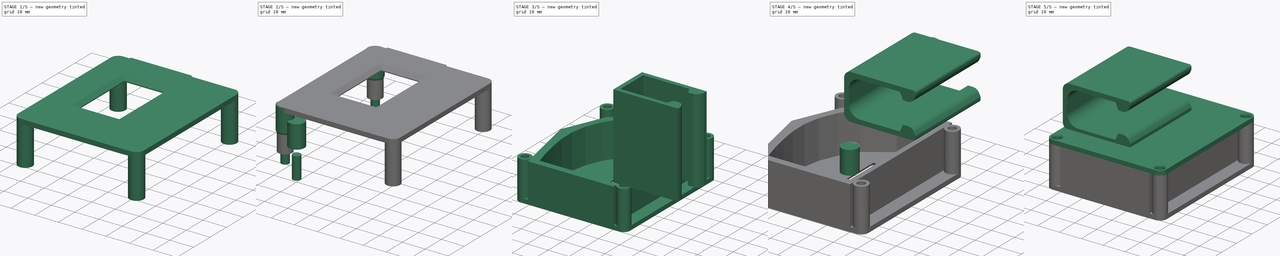
[diagram: build sequence overview — one tinted view per stage of 5, left to right]
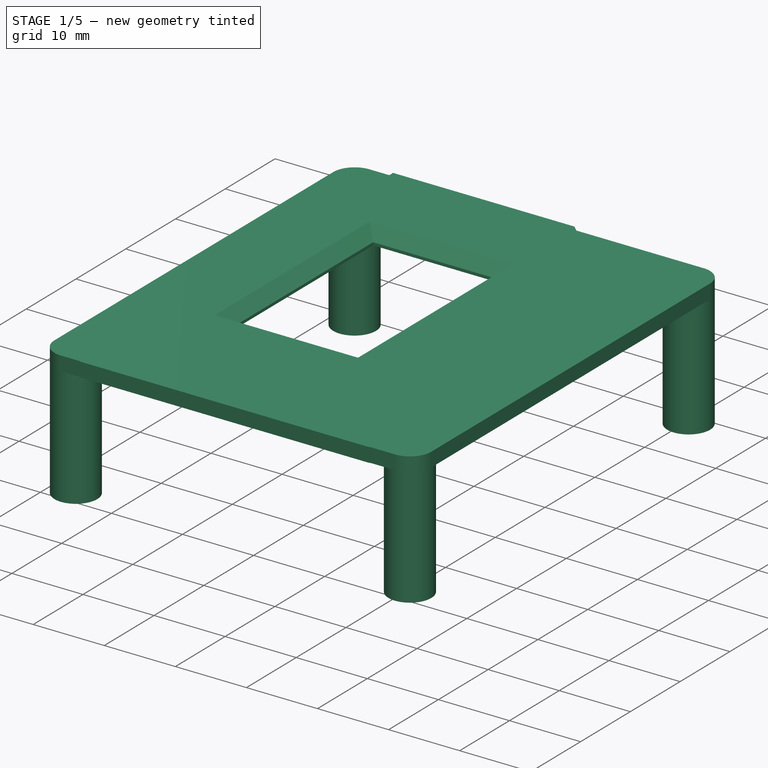
[diagram: stage 1 of 5 — iso view after this stage's code; geometry added in this stage tinted green]
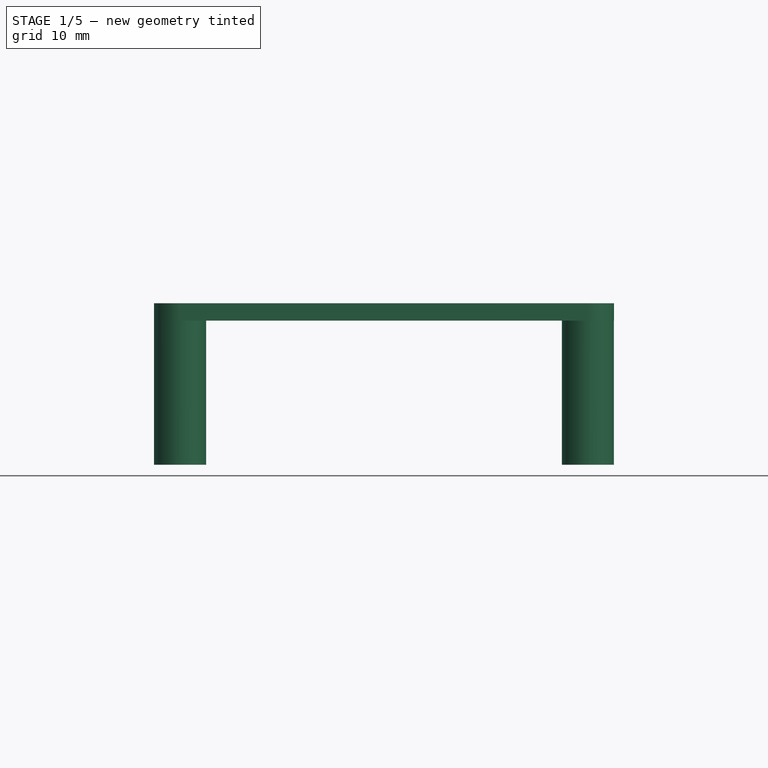
[diagram: stage 1 of 5 — front view after this stage's code; geometry added in this stage tinted green]
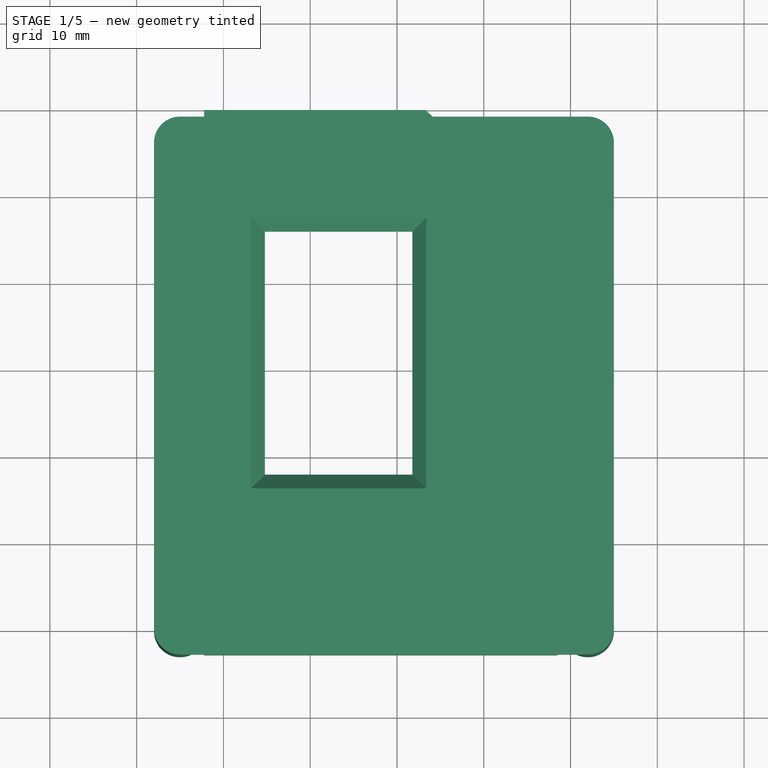
[diagram: stage 1 of 5 — top view after this stage's code; geometry added in this stage tinted green]
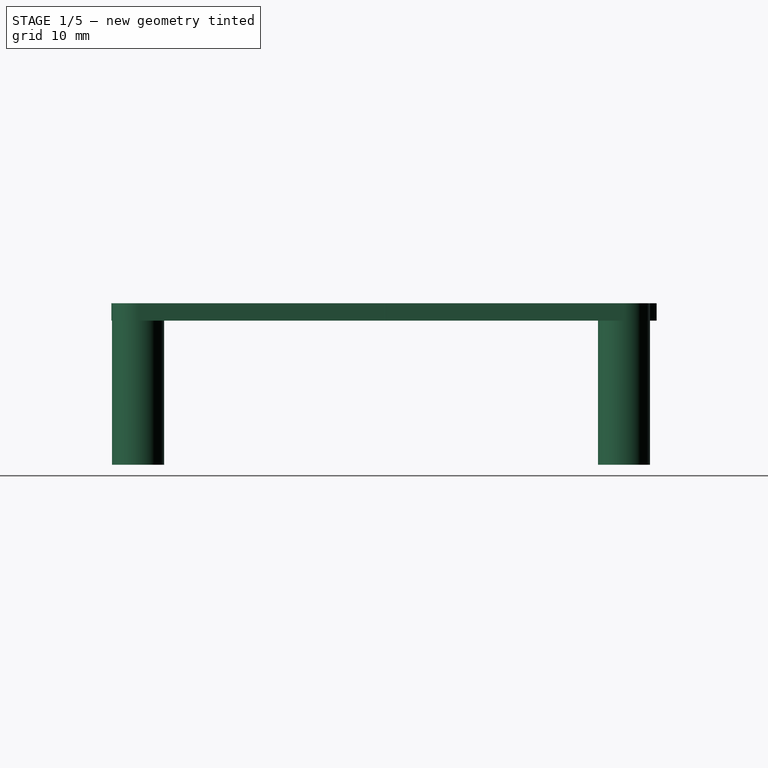
[diagram: stage 1 of 5 — right view after this stage's code; geometry added in this stage tinted green]
FCSTD DOCUMENT  (FreeCAD 0.19R24291 (Git))
Label: assembled
License: All rights reserved
LicenseURL: http://en.wikipedia.org/wiki/All_rights_reserved
objects: Part::Cylinder×20, Part::MultiFuse×20, Part::Cone×8, Part::Fillet×6, Sketcher::SketchObject×4, PartDesign::Pad×4, Part::Cut×3, PartDesign::Body×2, Part::Box×2, Part::Compound×2, Part::Chamfer×1
note: 76 computed .brp shape members not serialized (recipe doc carries the construction recipe); baked Part::Feature solids carry a one-line shape summary decoded from their .brp

FEATURE [Sketcher::SketchObject] Sketch001
  FullyConstrained = false
  MapMode = 5
  Support = -> [XY_Plane001]
  sketch-geometry (10):
    g0: LineSegment StartX=-2.22 StartY=59.76 StartZ=0 EndX=-2.22 EndY=-3.08 EndZ=0
    g1: LineSegment StartX=-2.22 StartY=-3.08 StartZ=0 EndX=38.49 EndY=-3.08 EndZ=0
    g2: LineSegment StartX=38.49 StartY=-3.08 StartZ=0 EndX=45.01 EndY=28.5398 EndZ=0
    g3: LineSegment StartX=45.01 StartY=28.5398 StartZ=0 EndX=36.9087 EndY=47.5089 EndZ=0
    g4: LineSegment StartX=36.9087 StartY=47.5089 StartZ=0 EndX=23.2746 EndY=59.76 EndZ=0
    g5: LineSegment StartX=23.2746 StartY=59.76 StartZ=0 EndX=-2.22 EndY=59.76 EndZ=0
    g6: LineSegment StartX=4.78 StartY=45.76 StartZ=0 EndX=21.78 EndY=45.76 EndZ=0
    g7: LineSegment StartX=21.78 StartY=45.76 StartZ=0 EndX=21.78 EndY=17.76 EndZ=0
    g8: LineSegment StartX=21.78 StartY=17.76 StartZ=0 EndX=4.78 EndY=17.76 EndZ=0
    g9: LineSegment StartX=4.78 StartY=17.76 StartZ=0 EndX=4.78 EndY=45.76 EndZ=0
  constraints (25):
    c: Vertical(g0)
    c: Coincident(g0,g1)
    c: Horizontal(g1)
    c: Coincident(g1,g2)
    c: Coincident(g2,g3)
    c: Coincident(g3,g4)
    c: Coincident(g4,g5)
    c: Coincident(g5,g0)
    c: Horizontal(g5)
    c: DistanceY(g0,g-1) = 3.08
    c: DistanceY(g-1,g0) = 59.76
    c: DistanceX(g0,g-1) = 2.22
    c: DistanceX(g-1,g1) = 38.49
    c: Coincident(g6,g7)
    c: Coincident(g7,g8)
    c: Coincident(g8,g9)
    c: Coincident(g9,g6)
    c: Horizontal(g6)
    c: Horizontal(g8)
    c: Vertical(g7)
    c: Vertical(g9)
    c: DistanceX(g0,g6) = 7
    c: DistanceX(g0,g6) = 24
    c: DistanceY(g6,g0) = 14
    c: DistanceY(g8,g0) = 42
FEATURE [PartDesign::Pad] Pad001
  Direction = (1,1,1)
  Length = 2
  Length2 = 100
  Profile = -> Sketch001
  Type = 0
FEATURE [Sketcher::SketchObject] Sketch002
  FullyConstrained = false
  MapMode = 5
  Support = -> [XY_Plane002]
  sketch-geometry (6):
    g0: LineSegment StartX=-2.21516 StartY=59.7598 StartZ=0 EndX=-2.21516 EndY=-3.07541 EndZ=0
    g1: LineSegment StartX=-2.21516 StartY=-3.07541 StartZ=0 EndX=38.4894 EndY=-3.07541 EndZ=0
    g2: LineSegment StartX=38.4894 StartY=-3.07541 StartZ=0 EndX=45.01 EndY=28.5398 EndZ=0
    g3: LineSegment StartX=45.01 StartY=28.5398 StartZ=0 EndX=36.9087 EndY=47.5089 EndZ=0
    g4: LineSegment StartX=36.9087 StartY=47.5089 StartZ=0 EndX=23.2746 EndY=59.7598 EndZ=0
    g5: LineSegment StartX=23.2746 StartY=59.7598 StartZ=0 EndX=-2.21516 EndY=59.7598 EndZ=0
  constraints (9):
    c: Vertical(g0)
    c: Coincident(g0,g1)
    c: Horizontal(g1)
    c: Coincident(g1,g2)
    c: Coincident(g2,g3)
    c: Coincident(g3,g4)
    c: Coincident(g4,g5)
    c: Coincident(g5,g0)
    c: Horizontal(g5)
FEATURE [PartDesign::Pad] Pad002
  Direction = (1,1,1)
  Length = 2
  Length2 = 100
  Profile = -> Sketch002
  Type = 0
FEATURE [Part::Compound] Compound
  Links = -> [Pad002]
  Placement = pos=(0,0,20) rot=(0,0,1;0rad)
FEATURE [Part::Box] Box001  label="top-plate001"
  AttacherType = Attacher::AttachEngine3D
  Height = 2
  Length = 53
  Placement = pos=(-8,-3,20) rot=(0,0,1;0rad)
  Width = 62
FEATURE [Part::Cut] Cut  label="bottom-plate-extension"
  Base = -> Box001
  Placement = pos=(0,0,-22) rot=(0,0,1;0rad)
  Tool = -> Compound
FEATURE [Part::Cylinder] Cylinder  label="connection-thread"
  Angle = 360
  AttacherType = Attacher::AttachEngine3D
  Height = 16.6
  Placement = pos=(-5,0,0) rot=(0,0,1;0rad)
  Radius = 3
FEATURE [Part::Cylinder] Cylinder009  label="connection-thread001"
  Angle = 360
  AttacherType = Attacher::AttachEngine3D
  Height = 16.6
  Placement = pos=(42,0,0) rot=(0,0,1;0rad)
  Radius = 3
FEATURE [Part::Cylinder] Cylinder010  label="connection-thread002"
  Angle = 360
  AttacherType = Attacher::AttachEngine3D
  Height = 16.6
  Placement = pos=(-5,0,0) rot=(0,0,1;0rad)
  Radius = 3
FEATURE [Part::Cylinder] Cylinder011  label="connection-thread003"
  Angle = 360
  AttacherType = Attacher::AttachEngine3D
  Height = 16.6
  Placement = pos=(42,0,0) rot=(0,0,1;0rad)
  Radius = 3
FEATURE [Part::MultiFuse] Fusion008  label="connection-threads-top"
  Placement = pos=(0,56,0) rot=(0,0,1;0rad)
  Shapes = -> [Cylinder011,Cylinder010]
FEATURE [Part::Fillet] Fillet
  Base = -> Cut
  Edges = 4 edges r=3: [Edge1,Edge3,Edge14,Edge27]
FEATURE [Part::MultiFuse] Fusion010  label="button-plate"
  Placement = pos=(0,0,18.6) rot=(0,0,1;0rad)
  Shapes = -> [Body001,Fillet]
FEATURE [Part::Chamfer] Chamfer  label="chamfered-bottom-plate"
  Base = -> Fusion010
  Edges = 4 edges r=1.6: [Edge44,Edge45,Edge46,Edge47]
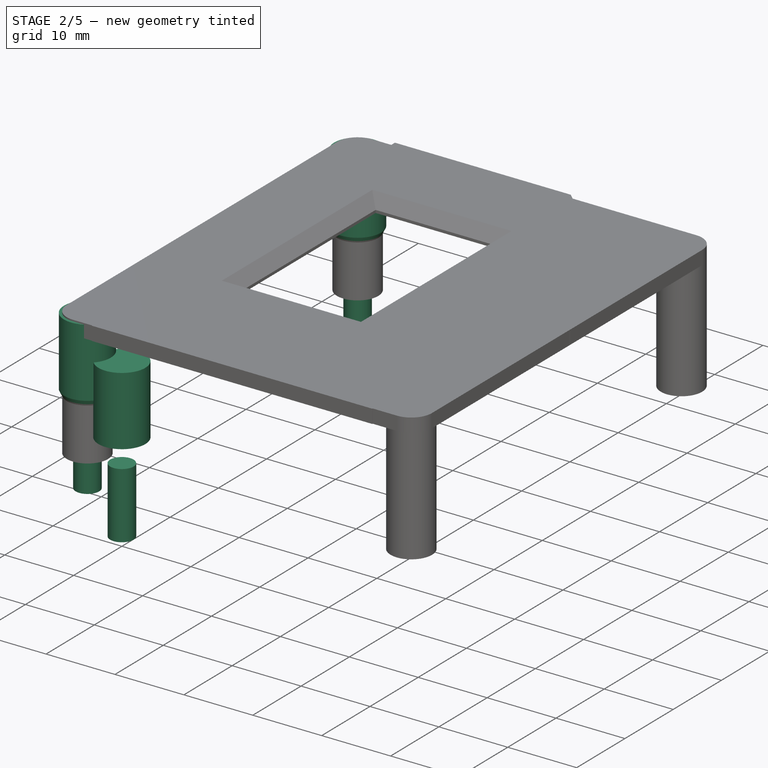
[diagram: stage 2 of 5 — iso view after this stage's code; geometry added in this stage tinted green]
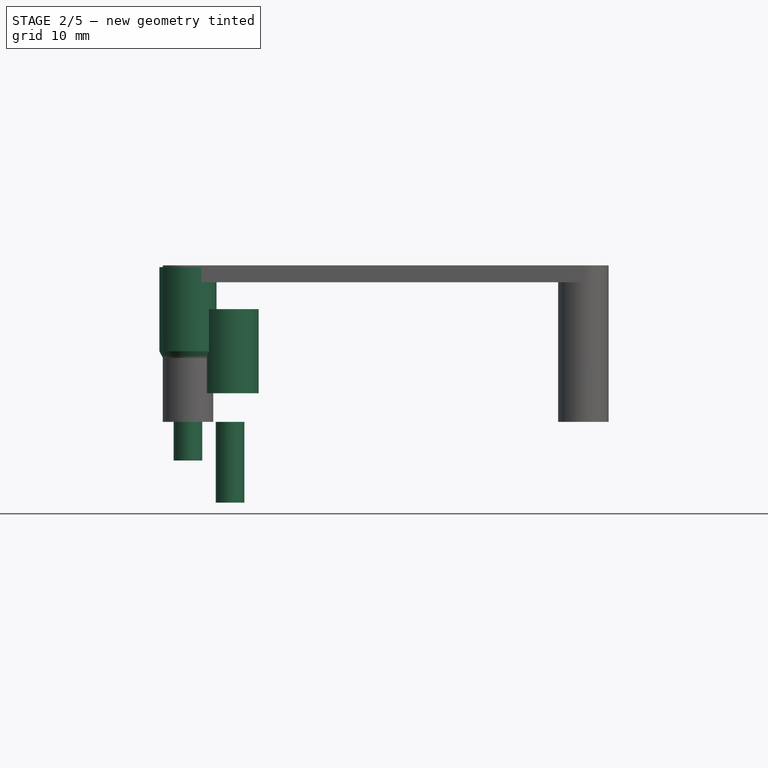
[diagram: stage 2 of 5 — front view after this stage's code; geometry added in this stage tinted green]
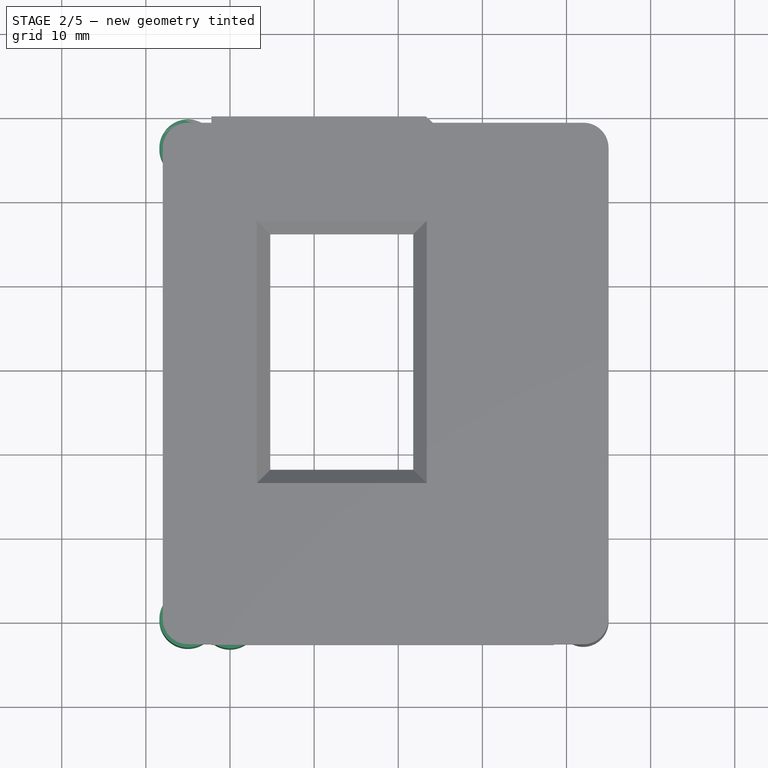
[diagram: stage 2 of 5 — top view after this stage's code; geometry added in this stage tinted green]
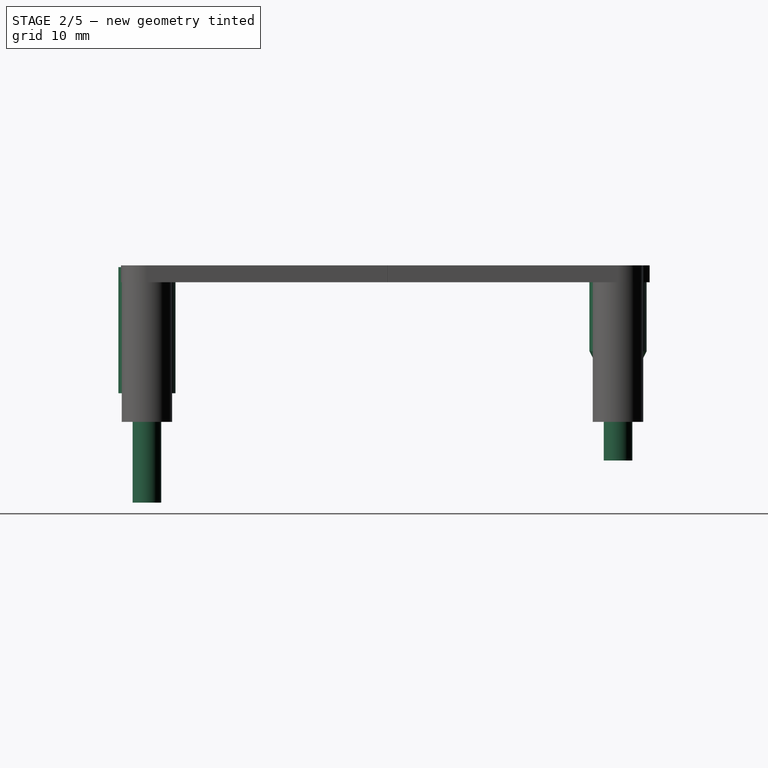
[diagram: stage 2 of 5 — right view after this stage's code; geometry added in this stage tinted green]
FEATURE [Part::Cylinder] Cylinder003  label="grab-screw-head-extension001"
  Angle = 360
  AttacherType = Attacher::AttachEngine3D
  Height = 10
  Placement = pos=(0,0,3.4) rot=(0,0,1;0rad)
  Radius = 3.4
FEATURE [Part::Cylinder] Cylinder004  label="grab-screw-thread001"
  Angle = 360
  AttacherType = Attacher::AttachEngine3D
  Height = 9.6
  Placement = pos=(0,0,-9.6) rot=(0,0,1;0rad)
  Radius = 1.7
FEATURE [Part::Cone] Cone003  label="grab-screw-head002"
  Angle = 360
  AttacherType = Attacher::AttachEngine3D
  Height = 3.4
  Radius1 = 1.7
  Radius2 = 3.4
FEATURE [Part::Cylinder] Cylinder005  label="grab-screw-head-extension002"
  Angle = 360
  AttacherType = Attacher::AttachEngine3D
  Height = 10
  Placement = pos=(0,0,3.4) rot=(0,0,1;0rad)
  Radius = 3.4
FEATURE [Part::Cylinder] Cylinder006  label="grab-screw-thread002"
  Angle = 360
  AttacherType = Attacher::AttachEngine3D
  Height = 9.6
  Placement = pos=(0,0,-9.6) rot=(0,0,1;0rad)
  Radius = 1.7
FEATURE [Part::Cone] Cone004  label="grab-screw-head003"
  Angle = 360
  AttacherType = Attacher::AttachEngine3D
  Height = 3.4
  Radius1 = 1.7
  Radius2 = 3.4
FEATURE [Part::Cylinder] Cylinder007  label="grab-screw-thread003"
  Angle = 360
  AttacherType = Attacher::AttachEngine3D
  Height = 9.6
  Placement = pos=(0,0,-9.6) rot=(0,0,1;0rad)
  Radius = 1.7
FEATURE [Part::MultiFuse] Fusion005  label="grab-screw003"
  Placement = pos=(42,0,5) rot=(0,0,1;0rad)
  Shapes = -> [Cylinder007,Cone003,Cylinder005]
FEATURE [Part::Cylinder] Cylinder008  label="grab-screw-head-extension003"
  Angle = 360
  AttacherType = Attacher::AttachEngine3D
  Height = 10
  Placement = pos=(0,0,3.4) rot=(0,0,1;0rad)
  Radius = 3.4
FEATURE [Part::MultiFuse] Fusion004  label="grab-screw002"
  Placement = pos=(42,56,5) rot=(0,0,1;0rad)
  Shapes = -> [Cylinder006,Cone004,Cylinder008]
FEATURE [Part::MultiFuse] Fusion003  label="left-screws"
  Placement = pos=(-47,0,0) rot=(0,0,1;0rad)
  Shapes = -> [Fusion005,Fusion004]
FEATURE [Part::MultiFuse] Fusion007  label="connection-threads-bottom"
  Shapes = -> [Cylinder009,Cylinder]
FEATURE [Part::MultiFuse] Fusion009  label="screw-sockets"
  Shapes = -> [Fusion008,Fusion007]
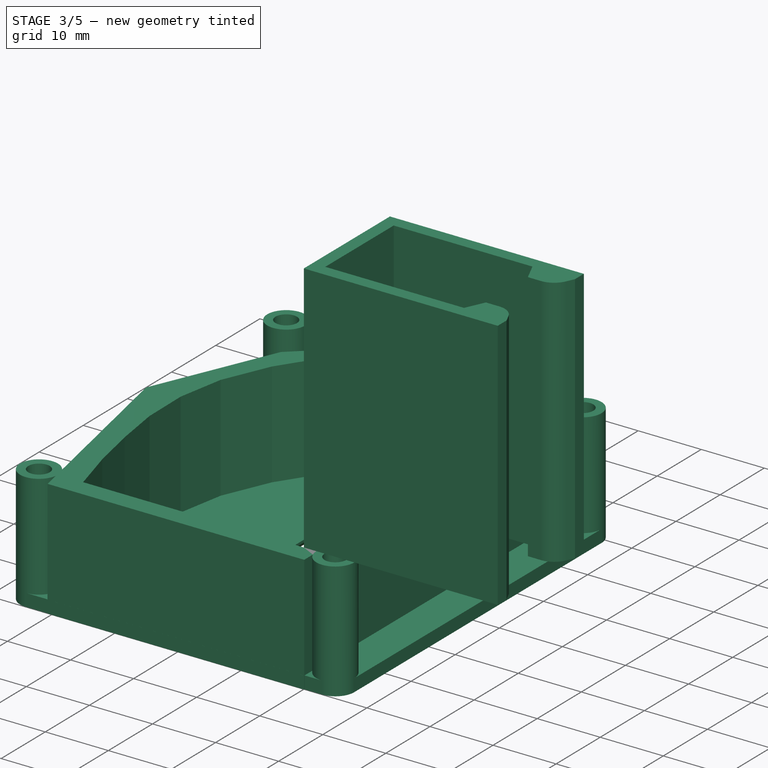
[diagram: stage 3 of 5 — iso view after this stage's code; geometry added in this stage tinted green]
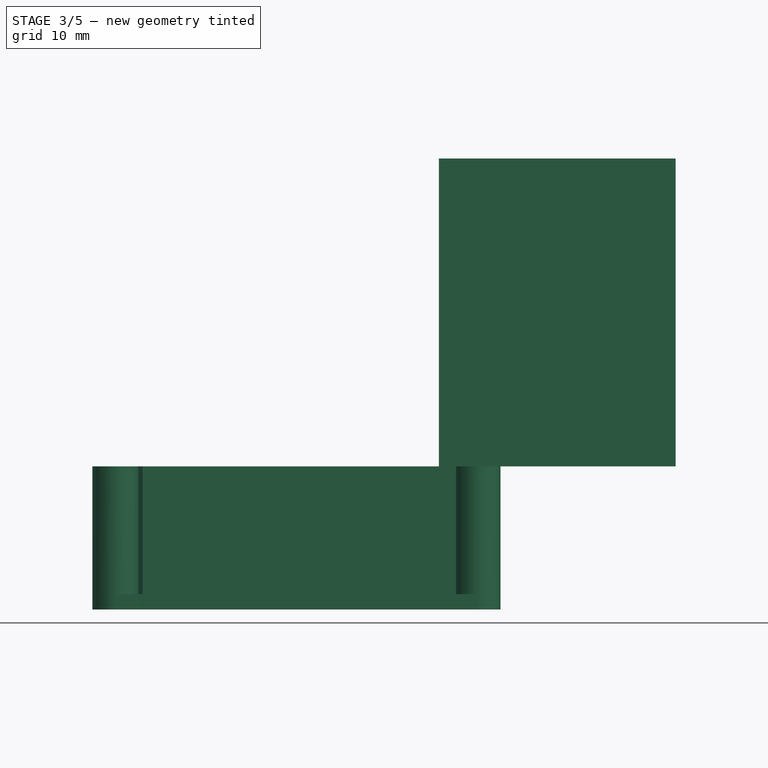
[diagram: stage 3 of 5 — front view after this stage's code; geometry added in this stage tinted green]
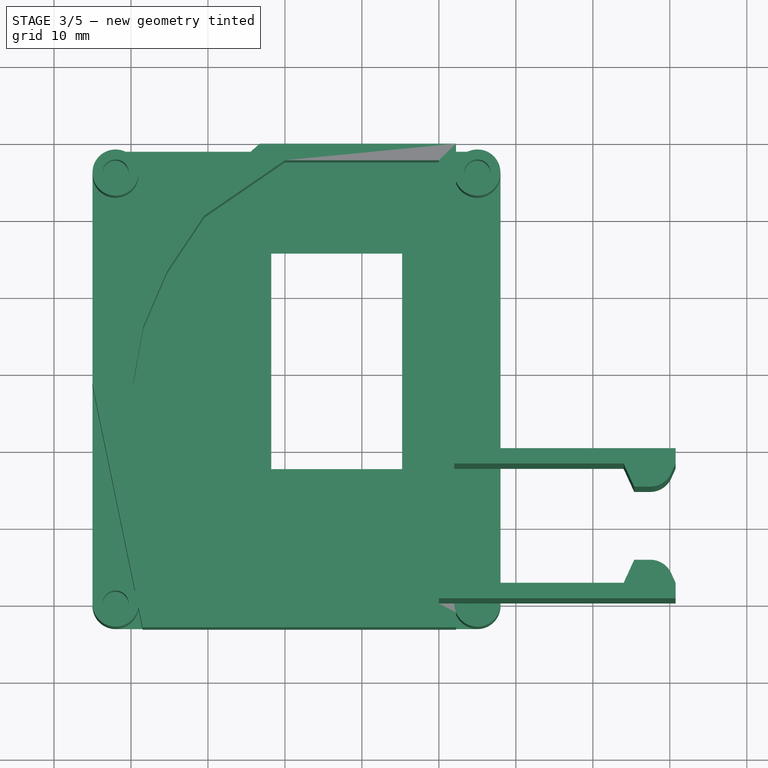
[diagram: stage 3 of 5 — top view after this stage's code; geometry added in this stage tinted green]
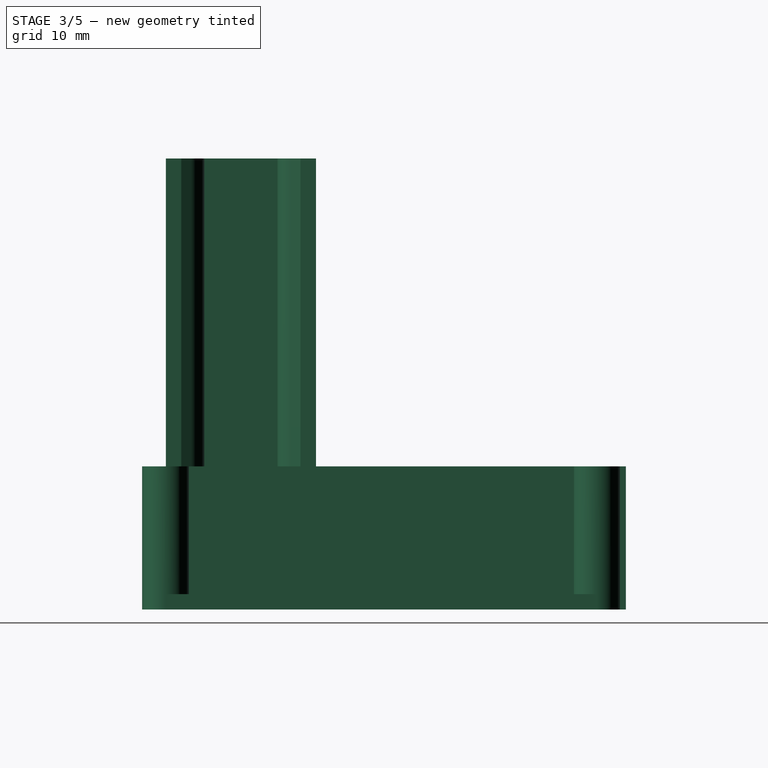
[diagram: stage 3 of 5 — right view after this stage's code; geometry added in this stage tinted green]
FEATURE [PartDesign::Body] Body001  label="bottom-button"
  Group = -> [Sketch001,Pad001]
  Origin = -> Origin001
  Placement = pos=(0,0,-2) rot=(0,0,1;0rad)
  Tip = -> Pad001
FEATURE [Sketcher::SketchObject] Sketch
  FullyConstrained = false
  MapMode = 5
  Support = -> [XY_Plane]
  sketch-geometry (17):
    g0: LineSegment StartX=0 StartY=0 StartZ=0 EndX=35 EndY=0 EndZ=0
    g1: LineSegment StartX=35 StartY=0 StartZ=0 EndX=37 EndY=7.2 EndZ=0
    g2: LineSegment StartX=37 StartY=7.2 StartZ=0 EndX=38.5 EndY=14.4 EndZ=0
    g3: LineSegment StartX=38.5 StartY=14.4 StartZ=0 EndX=39.6 EndY=21.6 EndZ=0
    g4: LineSegment StartX=39.6 StartY=21.6 StartZ=0 EndX=39.7 EndY=28.8 EndZ=0
    g5: LineSegment StartX=39.7 StartY=28.8 StartZ=0 EndX=38.4 EndY=36 EndZ=0
    g6: LineSegment StartX=38.4 StartY=36 StartZ=0 EndX=35.3 EndY=43.2 EndZ=0
    g7: LineSegment StartX=35.3 StartY=43.2 StartZ=0 EndX=30.5 EndY=50.4 EndZ=0
    g8: LineSegment StartX=30.5 StartY=50.4 StartZ=0 EndX=20 EndY=57.6 EndZ=0
    g9: LineSegment StartX=20 StartY=57.6 StartZ=0 EndX=0 EndY=57.6 EndZ=0
    g10: LineSegment StartX=0 StartY=57.6 StartZ=0 EndX=0 EndY=0 EndZ=0
    g11: LineSegment StartX=-2.21516 StartY=59.7598 StartZ=0 EndX=-2.21516 EndY=-3.07541 EndZ=0
    g12: LineSegment StartX=-2.21516 StartY=-3.07541 StartZ=0 EndX=38.4894 EndY=-3.07541 EndZ=0
    g13: LineSegment StartX=38.4894 StartY=-3.07541 StartZ=0 EndX=45.01 EndY=28.5398 EndZ=0
    g14: LineSegment StartX=45.01 StartY=28.5398 StartZ=0 EndX=36.9087 EndY=47.5089 EndZ=0
    g15: LineSegment StartX=36.9087 StartY=47.5089 StartZ=0 EndX=23.2746 EndY=59.7598 EndZ=0
    g16: LineSegment StartX=23.2746 StartY=59.7598 StartZ=0 EndX=-2.21516 EndY=59.7598 EndZ=0
  constraints (41):
    c: Coincident(g-1,g0)
    c: PointOnObject(g0,g-1)
    c: Coincident(g0,g1)
    c: Coincident(g1,g2)
    c: Coincident(g2,g3)
    c: Coincident(g3,g4)
    c: Coincident(g4,g5)
    c: Coincident(g5,g6)
    c: Coincident(g6,g7)
    c: Coincident(g7,g8)
    c: Coincident(g8,g9)
    c: PointOnObject(g9,g-2)
    c: Horizontal(g9)
    c: Coincident(g9,g10)
    c: Coincident(g10,g0)
    c: DistanceX(g0,g1) = 37
    c: DistanceX(g0,g2) = 38.5
    c: DistanceX(g0,g3) = 39.6
    c: DistanceX(g0,g4) = 39.7
    c: DistanceX(g0,g5) = 38.4
    c: DistanceX(g0,g6) = 35.3
    c: DistanceX(g0,g7) = 30.5
    c: DistanceX(g0,g8) = 20
    c: DistanceX(g0,g0) = 35
    c: DistanceY(g7,g8) = 7.2
    c: DistanceY(g6,g7) = 7.2
    c: DistanceY(g5,g6) = 7.2
    c: DistanceY(g4,g5) = 7.2
    c: DistanceY(g3,g4) = 7.2
    c: DistanceY(g2,g3) = 7.2
    c: DistanceY(g1,g2) = 7.2
    c: DistanceY(g0,g1) = 7.2
    c: Vertical(g11)
    c: Coincident(g11,g12)
    c: Horizontal(g12)
    c: Coincident(g12,g13)
    c: Coincident(g13,g14)
    c: Coincident(g14,g15)
    c: Coincident(g15,g16)
    c: Coincident(g16,g11)
    c: Horizontal(g16)
FEATURE [PartDesign::Pad] Pad
  Direction = (1,1,1)
  Length = 16.6
  Length2 = 100
  Profile = -> Sketch
  Type = 0
FEATURE [PartDesign::Body] Body  label="side-walls"
  Group = -> [Sketch,Pad]
  Origin = -> Origin
  Tip = -> Pad
FEATURE [Part::Cylinder] Cylinder001  label="grab-screw-thread"
  Angle = 360
  AttacherType = Attacher::AttachEngine3D
  Height = 9.6
  Placement = pos=(0,0,-9.6) rot=(0,0,1;0rad)
  Radius = 1.7
FEATURE [Part::Cone] Cone001  label="grab-screw-head"
  Angle = 360
  AttacherType = Attacher::AttachEngine3D
  Height = 3.4
  Radius1 = 1.7
  Radius2 = 3.4
FEATURE [Part::Cylinder] Cylinder002  label="grab-screw-head-extension"
  Angle = 360
  AttacherType = Attacher::AttachEngine3D
  Height = 10
  Placement = pos=(0,0,3.4) rot=(0,0,1;0rad)
  Radius = 3.4
FEATURE [Part::MultiFuse] Fusion001  label="grab-screw"
  Placement = pos=(42,0,5) rot=(0,0,1;0rad)
  Shapes = -> [Cylinder001,Cone001,Cylinder002]
FEATURE [Part::Cone] Cone002  label="grab-screw-head001"
  Angle = 360
  AttacherType = Attacher::AttachEngine3D
  Height = 3.4
  Radius1 = 1.7
  Radius2 = 3.4
FEATURE [Part::MultiFuse] Fusion002  label="grab-screw001"
  Placement = pos=(42,56,5) rot=(0,0,1;0rad)
  Shapes = -> [Cylinder004,Cone002,Cylinder003]
FEATURE [Part::MultiFuse] Fusion  label="right-screws"
  Shapes = -> [Fusion001,Fusion002]
FEATURE [Part::MultiFuse] Fusion006  label="all-screws"
  Placement = pos=(37,0,5) rot=(0,1,0;3.14159rad)
  Shapes = -> [Fusion003,Fusion]
FEATURE [Sketcher::SketchObject] Sketch003
  FullyConstrained = true
  MapMode = 5
  Support = -> [XY_Plane003]
  sketch-geometry (14):
    g0: LineSegment StartX=0 StartY=0 StartZ=0 EndX=30.7495 EndY=0 EndZ=0
    g1: LineSegment StartX=30.7495 StartY=0 StartZ=0 EndX=30.7495 EndY=2 EndZ=0
    g2: LineSegment StartX=30.7495 StartY=2 StartZ=0 EndX=29.3748 EndY=5 EndZ=0
    g3: LineSegment StartX=29.3748 StartY=5 StartZ=0 EndX=25.3748 EndY=5 EndZ=0
    g4: LineSegment StartX=25.3748 StartY=5 StartZ=0 EndX=24 EndY=2 EndZ=0
    g5: LineSegment StartX=24 StartY=2 StartZ=0 EndX=2 EndY=2 EndZ=0
    g6: LineSegment StartX=2 StartY=2 StartZ=0 EndX=2 EndY=17.5 EndZ=0
    g7: LineSegment StartX=2 StartY=17.5 StartZ=0 EndX=24 EndY=17.5 EndZ=0
    g8: LineSegment StartX=24 StartY=17.5 StartZ=0 EndX=25.3748 EndY=14.5 EndZ=0
    g9: LineSegment StartX=25.3748 StartY=14.5 StartZ=0 EndX=29.3748 EndY=14.5 EndZ=0
    g10: LineSegment StartX=29.3748 StartY=14.5 StartZ=0 EndX=30.7495 EndY=17.5 EndZ=0
    g11: LineSegment StartX=30.7495 StartY=17.5 StartZ=0 EndX=30.7495 EndY=19.5 EndZ=0
    g12: LineSegment StartX=30.7495 StartY=19.5 StartZ=0 EndX=0 EndY=19.5 EndZ=0
    g13: LineSegment StartX=0 StartY=19.5 StartZ=0 EndX=0 EndY=0 EndZ=0
  constraints (41):
    c: Coincident(g-1,g0)
    c: PointOnObject(g0,g-1)
    c: Coincident(g0,g1)
    c: Vertical(g1)
    c: Coincident(g1,g2)
    c: Coincident(g2,g3)
    c: Horizontal(g3)
    c: Coincident(g3,g4)
    c: Coincident(g4,g5)
    c: Horizontal(g5)
    c: Coincident(g5,g6)
    c: Vertical(g6)
    c: Coincident(g6,g7)
    c: Horizontal(g7)
    c: Coincident(g7,g8)
    c: Coincident(g8,g9)
    c: Horizontal(g9)
    c: Coincident(g9,g10)
    c: Coincident(g10,g11)
    c: Vertical(g11)
    c: Coincident(g11,g12)
    c: PointOnObject(g12,g-2)
    c: Horizontal(g12)
    c: Coincident(g12,g13)
    c: Coincident(g13,g0)
    c: Equal(g4,g2)
    c: Equal(g8,g10)
    c: Equal(g1,g11)
    c: Equal(g9,g3)
    c: Equal(g8,g4)
    c: Equal(g7,g5)
    c: DistanceY(g7,g10) = 0
    c: DistanceY(g4,g1) = 0
    c: DistanceY(g10,g11) = 2
    c: DistanceX(g3,g2) = 4
    c: Distance(g2,g1) = 3.3
    c: Equal(g12,g0)
    c: DistanceY(g2,g9) = 9.5
    c: DistanceY(g5,g6) = 15.5
    c: DistanceX(g6,g7) = 22
    c: DistanceX(g12,g6) = 2
FEATURE [PartDesign::Pad] Pad003
  Direction = (1,1,1)
  Length = 40
  Length2 = 100
  Profile = -> Sketch003
  Type = 0
FEATURE [Part::Compound] Compound001
  Links = -> [Pad003]
FEATURE [Part::Fillet] Fillet004
  Base = -> Compound001
  Edges = 2 edges r=3: [Edge8,Edge29]
FEATURE [Part::Cut] Cut003  label="screw-bits"
  Base = -> Fusion009
  Tool = -> Fusion006
FEATURE [Part::MultiFuse] Fusion020  label="final-bottom-plate"
  Placement = pos=(0,0,0) rot=(0,1,0;3.14159rad)
  Shapes = -> [Chamfer,Cut003,Body]
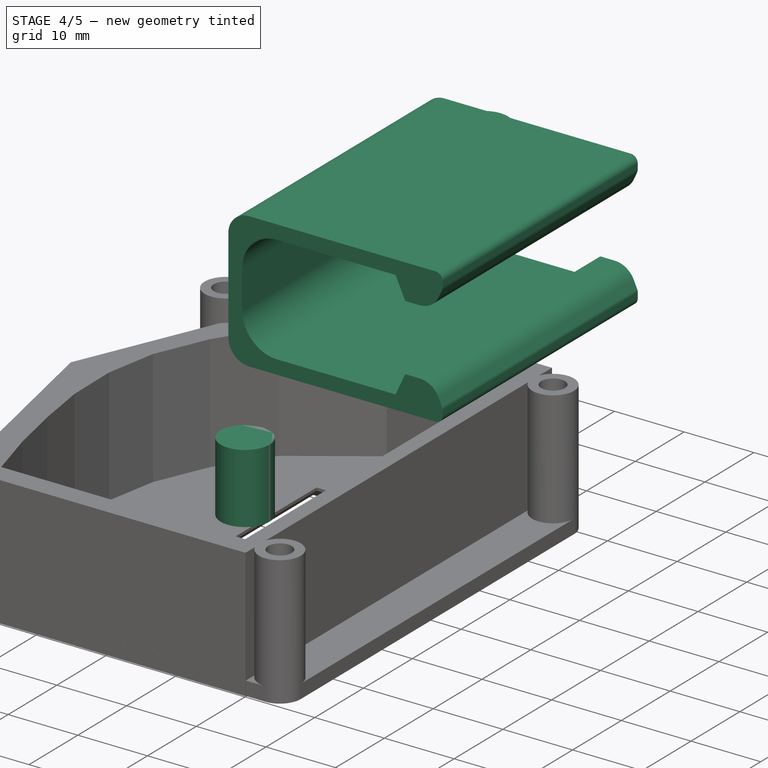
[diagram: stage 4 of 5 — iso view after this stage's code; geometry added in this stage tinted green]
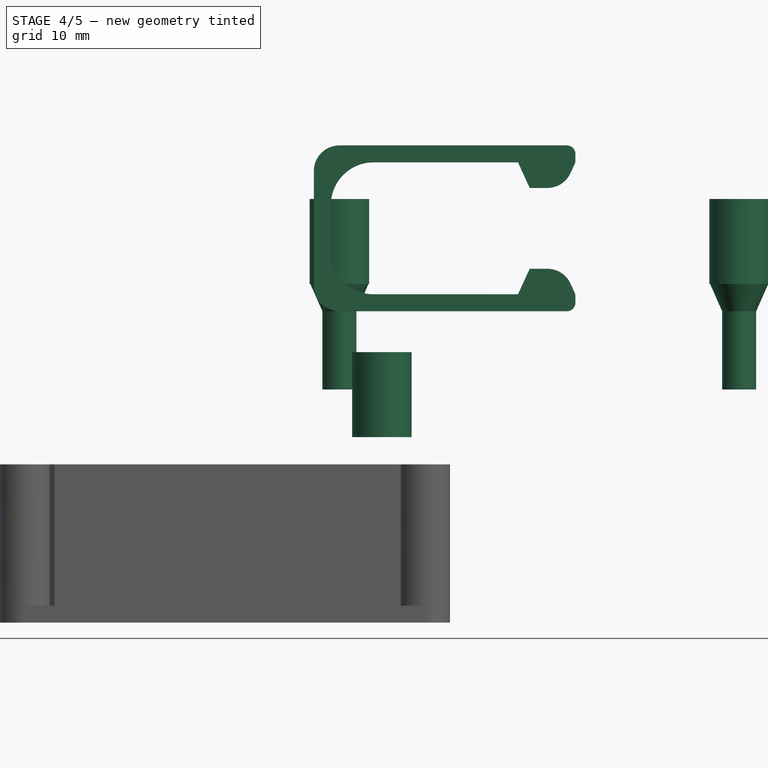
[diagram: stage 4 of 5 — front view after this stage's code; geometry added in this stage tinted green]
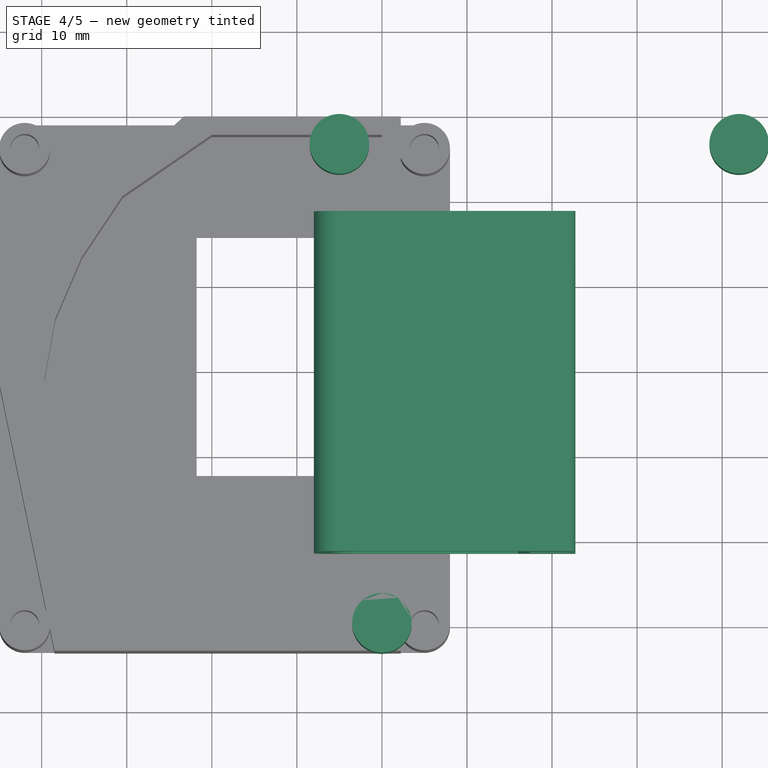
[diagram: stage 4 of 5 — top view after this stage's code; geometry added in this stage tinted green]
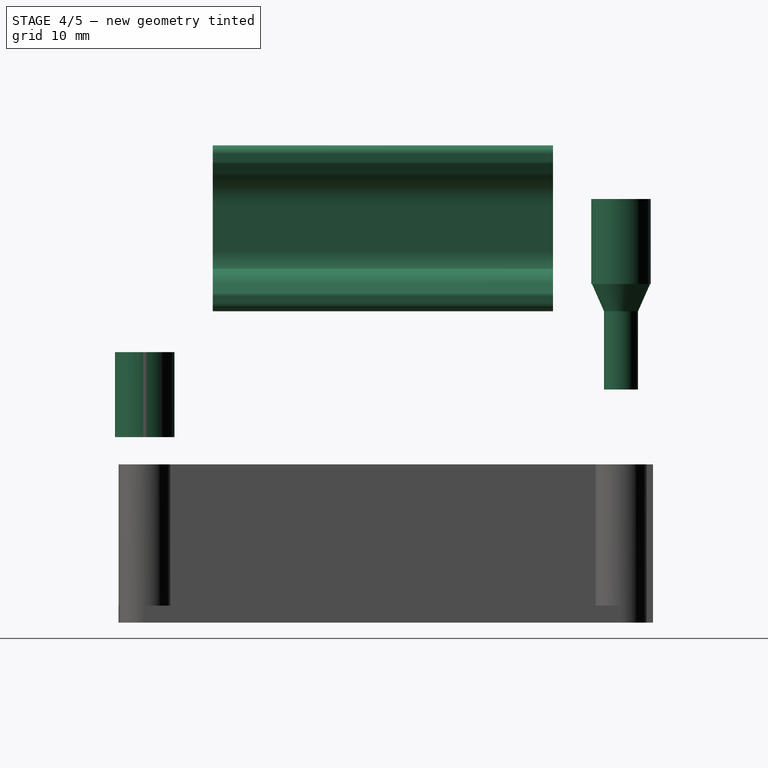
[diagram: stage 4 of 5 — right view after this stage's code; geometry added in this stage tinted green]
FEATURE [Part::Cylinder] Cylinder015  label="pass-screw-head-extension001"
  Angle = 360
  AttacherType = Attacher::AttachEngine3D
  Height = 10
  Placement = pos=(0,0,3.2) rot=(0,0,1;0rad)
  Radius = 3.5
FEATURE [Part::Cylinder] Cylinder016  label="pass-screw-thread002"
  Angle = 360
  AttacherType = Attacher::AttachEngine3D
  Height = 9.2
  Placement = pos=(0,0,-9.2) rot=(0,0,1;0rad)
  Radius = 2
FEATURE [Part::Cylinder] Cylinder017  label="pass-screw-thread003"
  Angle = 360
  AttacherType = Attacher::AttachEngine3D
  Height = 9.2
  Placement = pos=(0,0,-9.2) rot=(0,0,1;0rad)
  Radius = 2
FEATURE [Part::Cone] Cone006  label="pass-screw-head002"
  Angle = 360
  AttacherType = Attacher::AttachEngine3D
  Height = 3.4
  Radius1 = 2
  Radius2 = 3.5
FEATURE [Part::Cylinder] Cylinder018  label="pass-screw-head-extension002"
  Angle = 360
  AttacherType = Attacher::AttachEngine3D
  Height = 10
  Placement = pos=(0,0,3.2) rot=(0,0,1;0rad)
  Radius = 3.5
FEATURE [Part::Cone] Cone007  label="pass-screw-head003"
  Angle = 360
  AttacherType = Attacher::AttachEngine3D
  Height = 3.4
  Radius1 = 2
  Radius2 = 3.5
FEATURE [Part::MultiFuse] Fusion016  label="pass-screw003"
  Placement = pos=(42,0,18) rot=(0,0,1;0rad)
  Shapes = -> [Cylinder018,Cylinder017,Cone007]
FEATURE [Part::Cylinder] Cylinder019  label="pass-screw-head-extension003"
  Angle = 360
  AttacherType = Attacher::AttachEngine3D
  Height = 10
  Placement = pos=(0,0,3.2) rot=(0,0,1;0rad)
  Radius = 3.5
FEATURE [Part::MultiFuse] Fusion015  label="pass-screw002"
  Placement = pos=(-5,0,18) rot=(0,0,1;0rad)
  Shapes = -> [Cylinder019,Cylinder016,Cone006]
FEATURE [Part::MultiFuse] Fusion017  label="pass-screw-top"
  Placement = pos=(0,56,0) rot=(0,0,1;0rad)
  Shapes = -> [Fusion015,Fusion016]
FEATURE [Part::Fillet] Fillet005
  Base = -> Fillet004
  Edges = 4 edges r=1: [Edge2,Edge22,Edge42,Edge44]
FEATURE [Part::Fillet] Fillet002
  Base = -> Fillet005
  Edges = 2 edges r=5: [Edge50,Edge52]
FEATURE [Part::Fillet] Fillet003  label="clip"
  Base = -> Fillet002
  Edges = 2 edges r=3: [Edge57,Edge60]
  Placement = pos=(-8,48,18) rot=(1,0,0;1.5708rad)
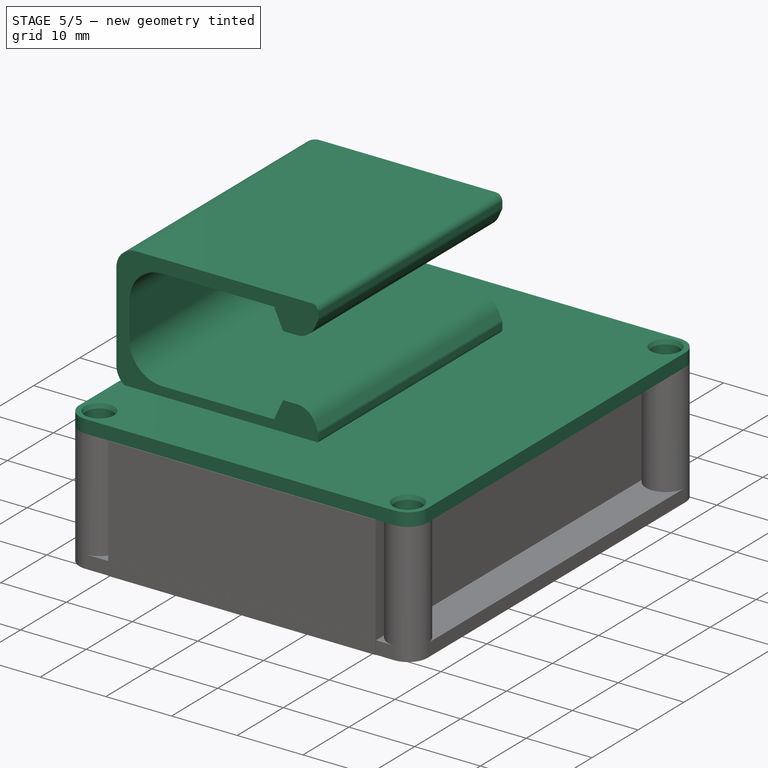
[diagram: stage 5 of 5 — iso view after this stage's code; geometry added in this stage tinted green]
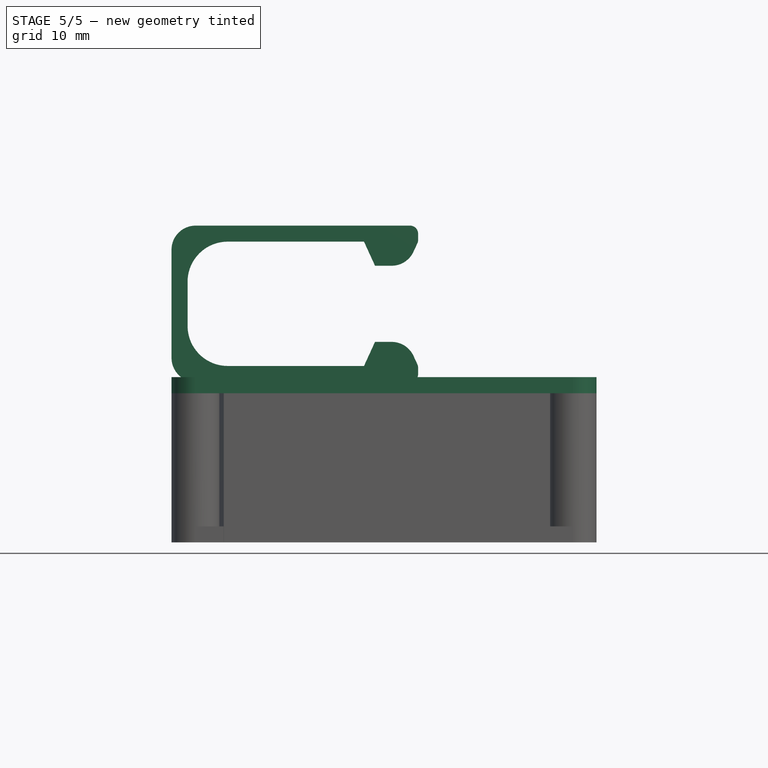
[diagram: stage 5 of 5 — front view after this stage's code; geometry added in this stage tinted green]
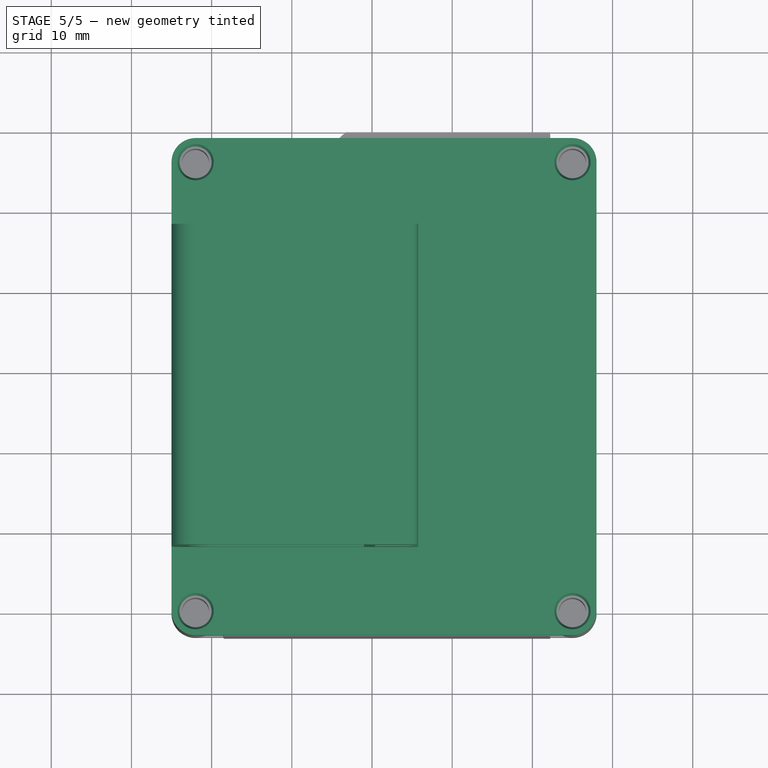
[diagram: stage 5 of 5 — top view after this stage's code; geometry added in this stage tinted green]
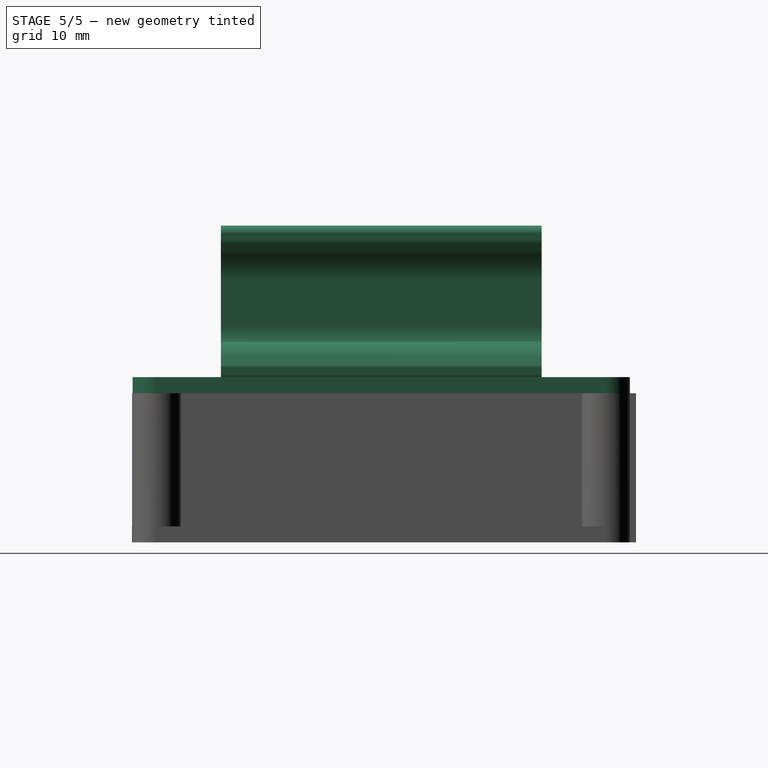
[diagram: stage 5 of 5 — right view after this stage's code; geometry added in this stage tinted green]
FEATURE [Part::Box] Box  label="top-plate"
  AttacherType = Attacher::AttachEngine3D
  Height = 2
  Length = 53
  Placement = pos=(-8,-3,16.6) rot=(0,0,1;0rad)
  Width = 62
FEATURE [Part::Fillet] Fillet001  label="top-plate-rounded"
  Base = -> Box
  Edges = 4 edges r=3: [Edge1,Edge3,Edge5,Edge7]
FEATURE [Part::Cylinder] Cylinder012  label="pass-screw-head-extension"
  Angle = 360
  AttacherType = Attacher::AttachEngine3D
  Height = 10
  Placement = pos=(0,0,3.2) rot=(0,0,1;0rad)
  Radius = 3.5
FEATURE [Part::Cylinder] Cylinder013  label="pass-screw-thread"
  Angle = 360
  AttacherType = Attacher::AttachEngine3D
  Height = 9.2
  Placement = pos=(0,0,-9.2) rot=(0,0,1;0rad)
  Radius = 2
FEATURE [Part::Cone] Cone  label="pass-screw-head"
  Angle = 360
  AttacherType = Attacher::AttachEngine3D
  Height = 3.4
  Radius1 = 2
  Radius2 = 3.5
FEATURE [Part::MultiFuse] Fusion012  label="pass-screw"
  Placement = pos=(-5,0,18) rot=(0,0,1;0rad)
  Shapes = -> [Cylinder012,Cylinder013,Cone]
FEATURE [Part::Cylinder] Cylinder014  label="pass-screw-thread001"
  Angle = 360
  AttacherType = Attacher::AttachEngine3D
  Height = 9.2
  Placement = pos=(0,0,-9.2) rot=(0,0,1;0rad)
  Radius = 2
FEATURE [Part::Cone] Cone005  label="pass-screw-head001"
  Angle = 360
  AttacherType = Attacher::AttachEngine3D
  Height = 3.4
  Radius1 = 2
  Radius2 = 3.5
FEATURE [Part::MultiFuse] Fusion013  label="pass-screw001"
  Placement = pos=(42,0,18) rot=(0,0,1;0rad)
  Shapes = -> [Cylinder015,Cylinder014,Cone005]
FEATURE [Part::MultiFuse] Fusion014  label="pass-screw-bottom"
  Shapes = -> [Fusion012,Fusion013]
FEATURE [Part::MultiFuse] Fusion018
  Shapes = -> [Fusion014,Fusion017]
FEATURE [Part::Cut] Cut002  label="top-plate-with-screws"
  Base = -> Fillet001
  Tool = -> Fusion018
FEATURE [Part::MultiFuse] Fusion019  label="final-top-plate-with-clip"
  Placement = pos=(-37,0,-16.6) rot=(0,1,0;0rad)
  Shapes = -> [Fillet003,Cut002]
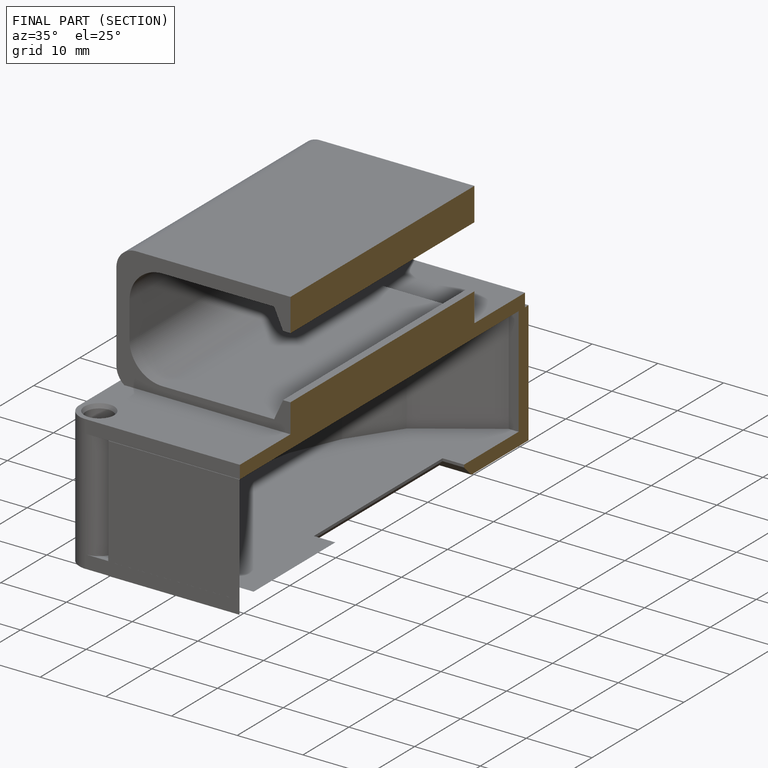
[diagram: finished part — half-section view (interior)]
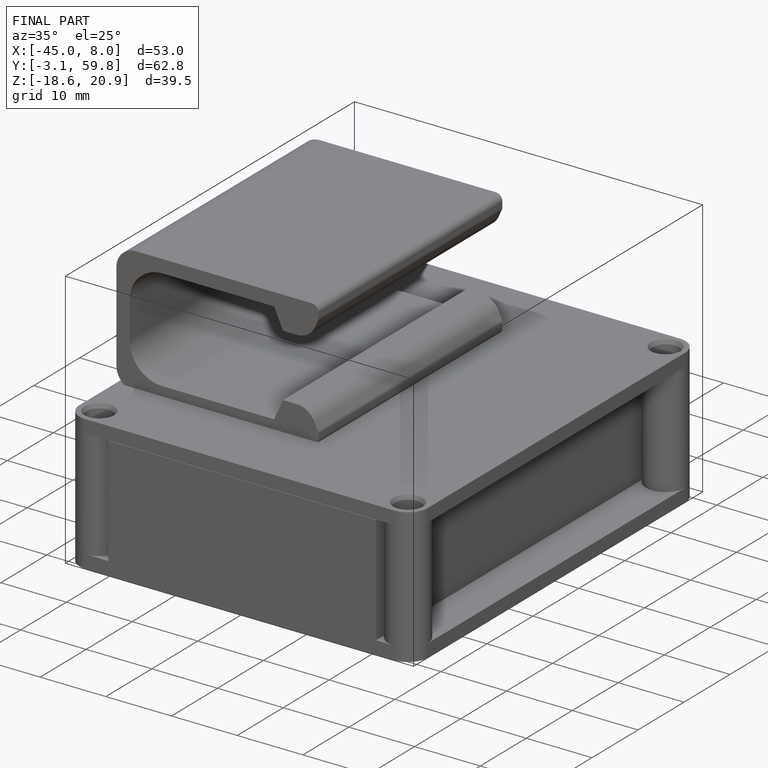
[diagram: finished part — iso view with bounding-box wireframe]
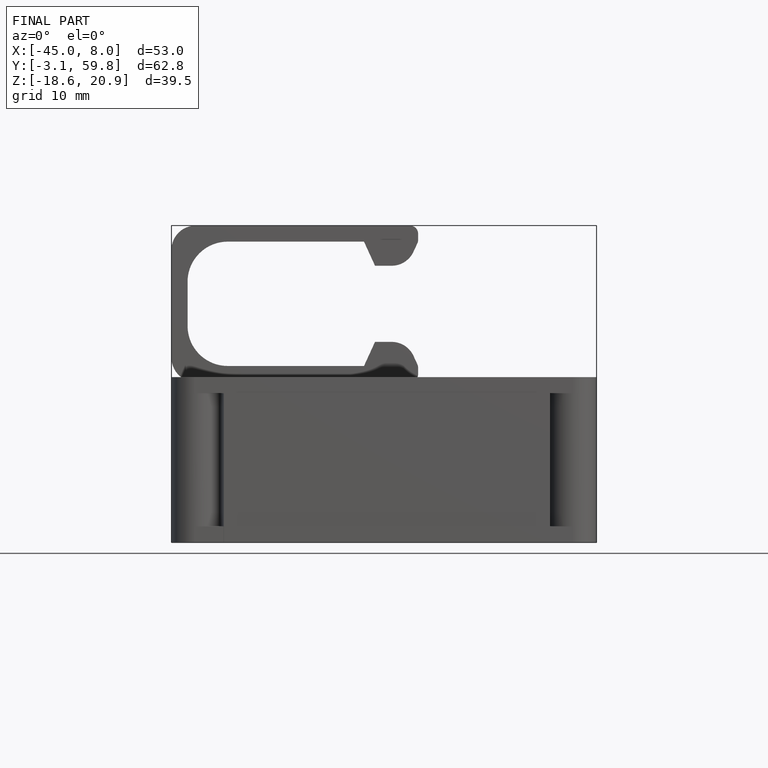
[diagram: finished part — front view with bounding-box wireframe]
